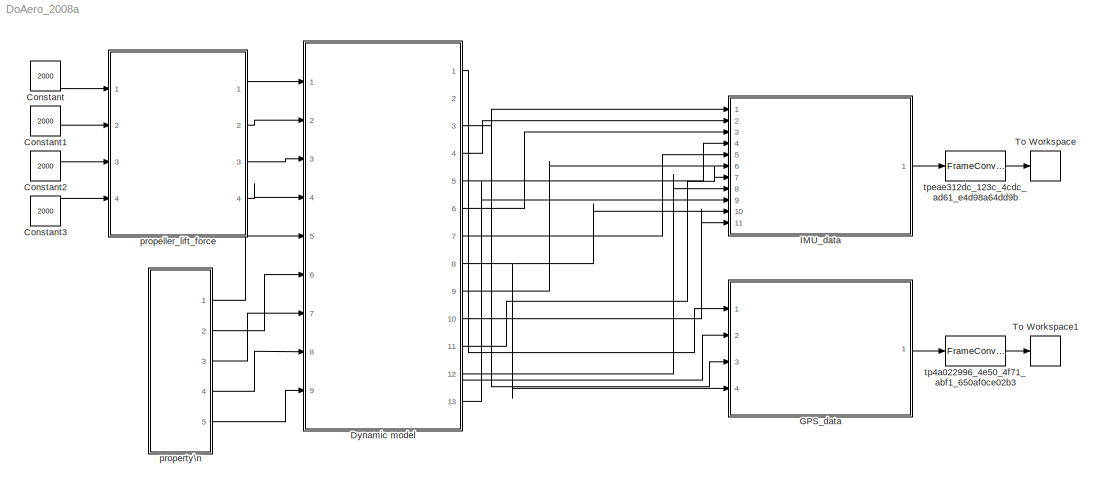
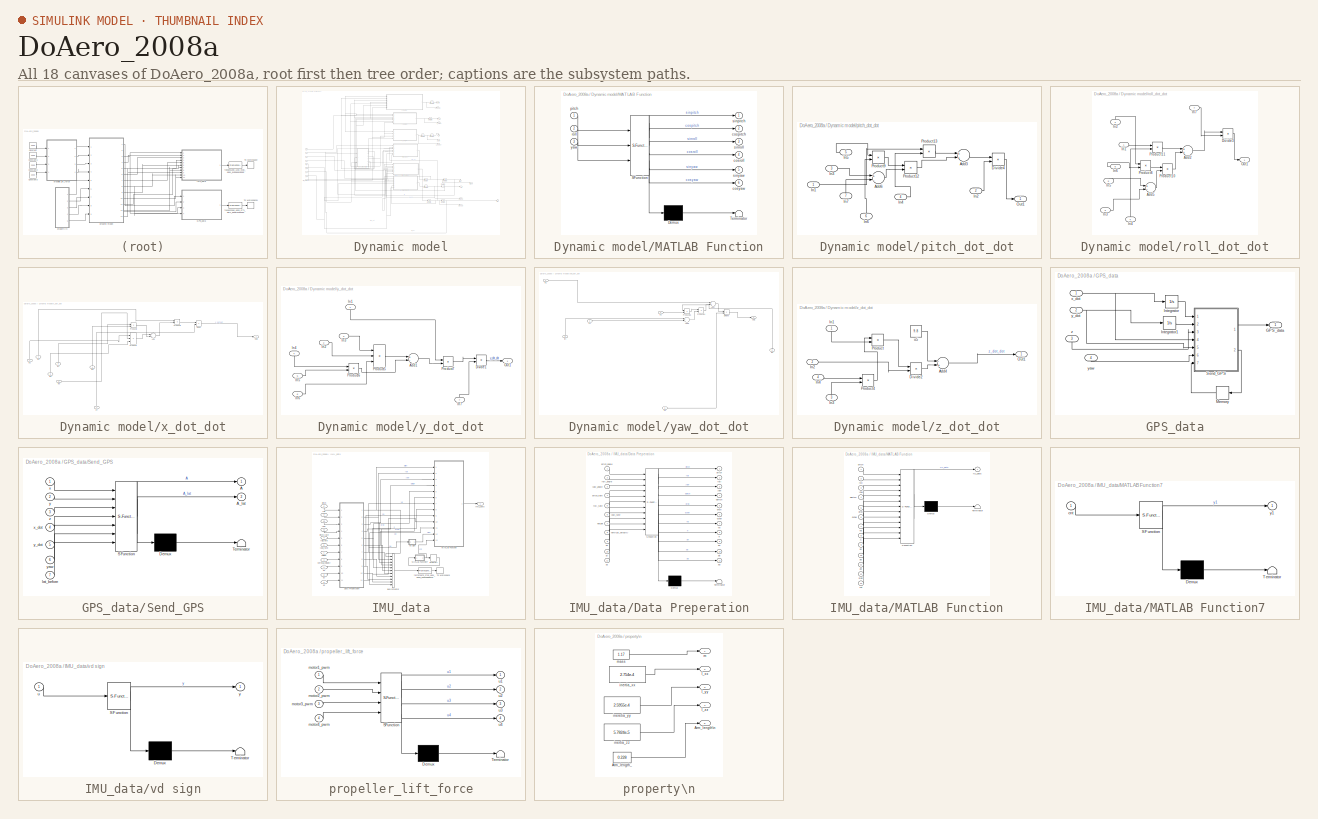
[diagram: thumbnail index - all 18 canvases of the model, root first then tree order]
MODEL DoAero_2008a
KIND model
BLOCK [Constant] Constant
  Value = 2000
BLOCK [Constant] Constant1
  Value = 2000
BLOCK [Constant] Constant2
  Value = 2000
BLOCK [Constant] Constant3
  Value = 2000
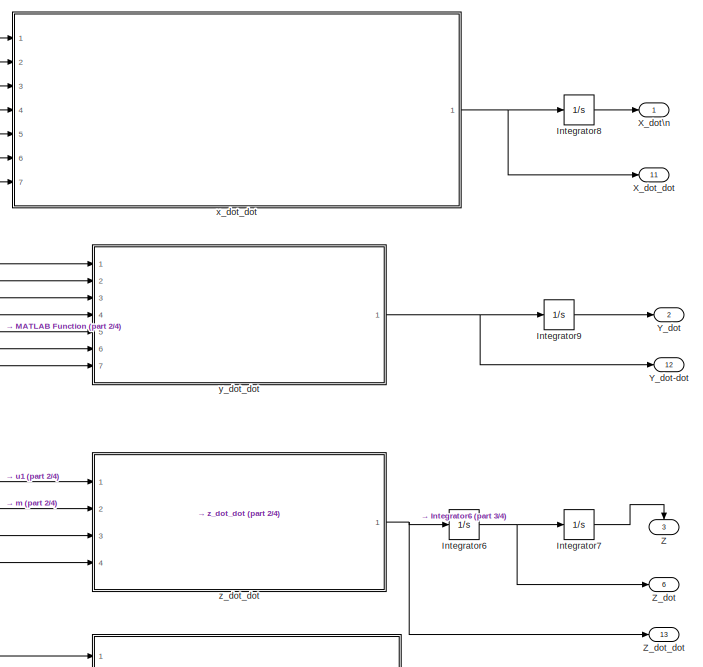
[diagram: Dynamic model - part 1/4, top center region]
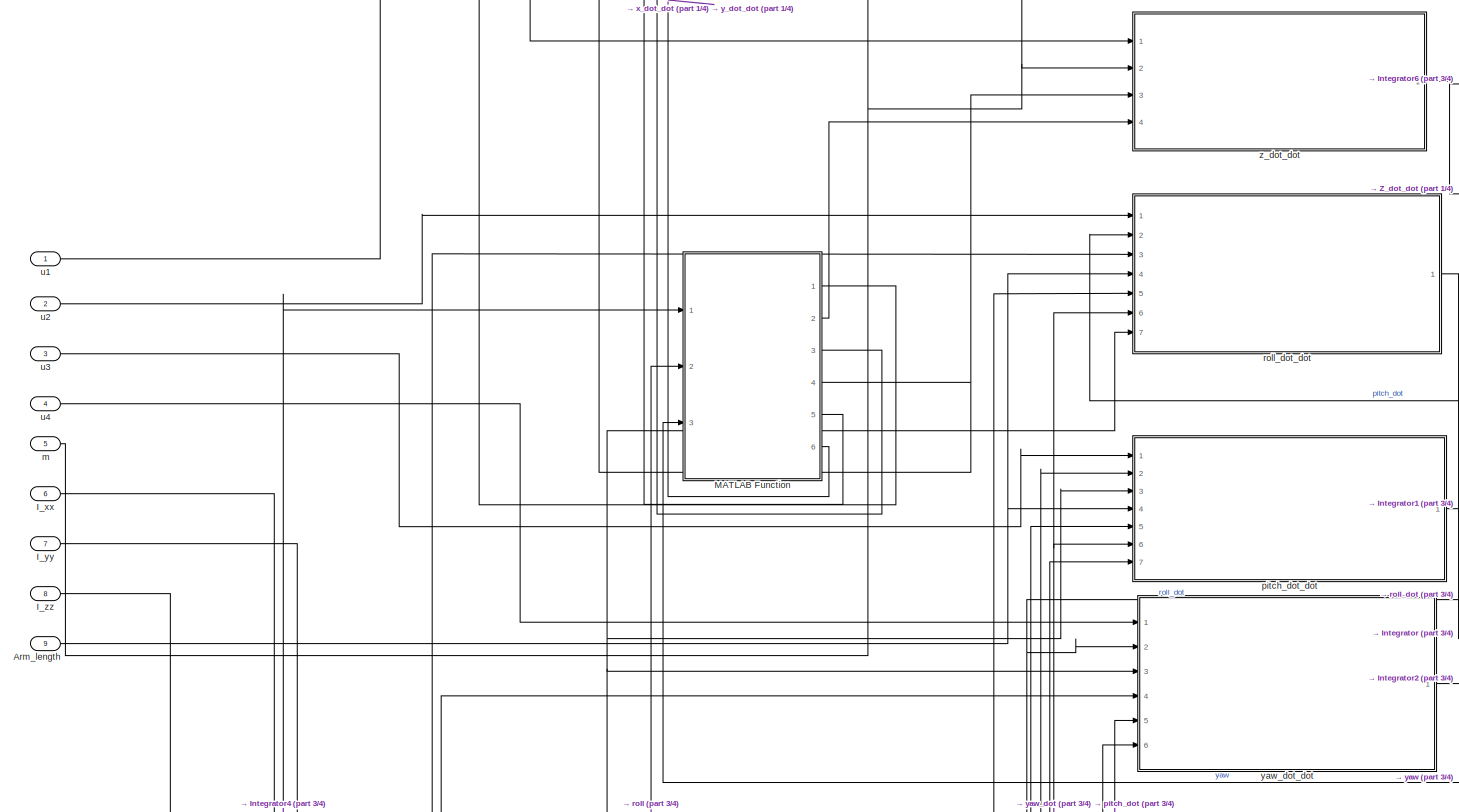
[diagram: Dynamic model - part 2/4, middle left region]
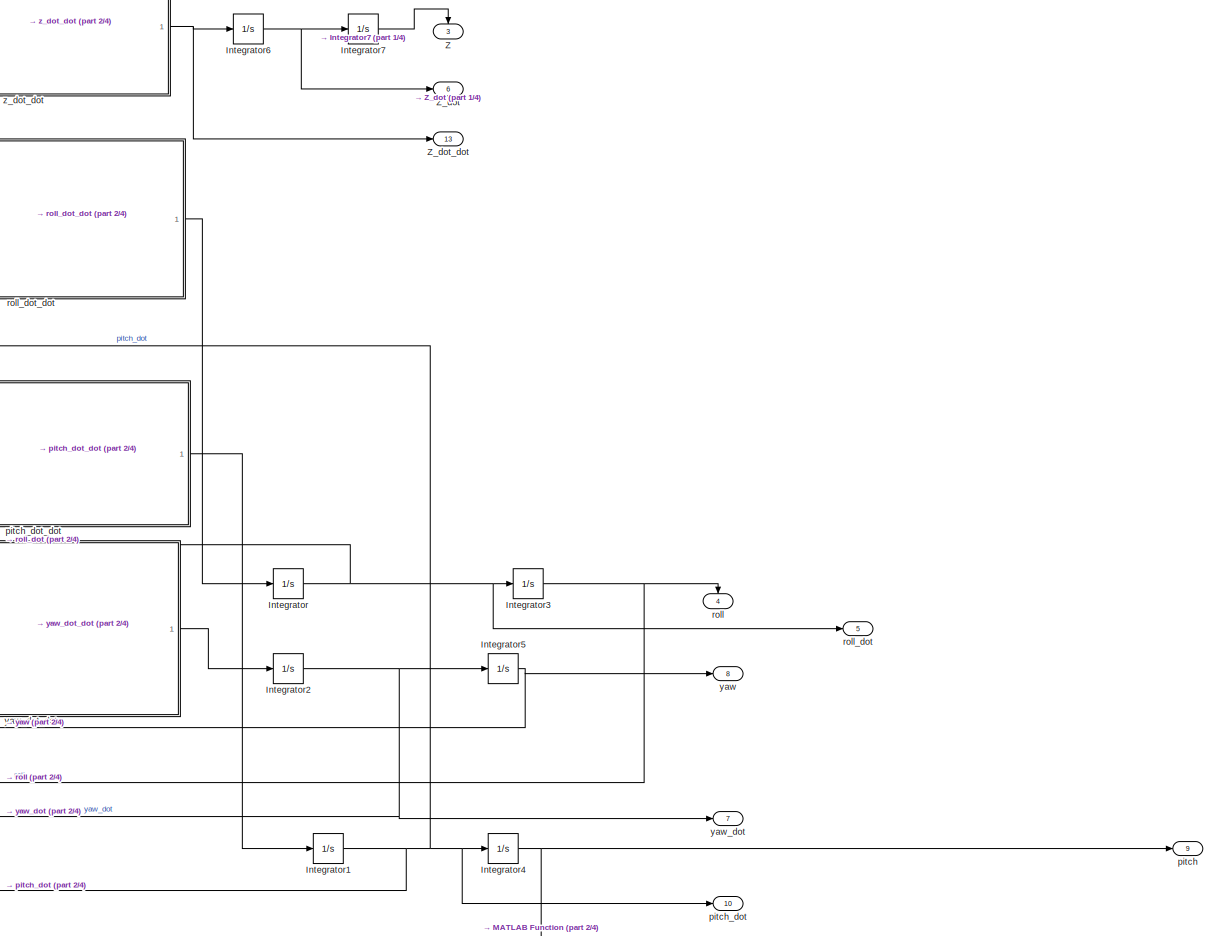
[diagram: Dynamic model - part 3/4, middle right region]
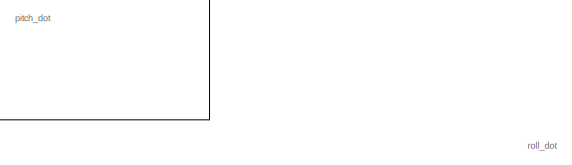
[diagram: Dynamic model - part 4/4, bottom center region]
BLOCK [SubSystem] Dynamic model
  FunctionWithSeparateData = off
  MaskHideContents = off
  MinAlgLoopOccurrences = off
  Opaque = off
  Ports = [9, 13]
  PropExecContextOutsideSubsystem = off
  RTWSystemCode = Auto
BLOCK [Inport] Dynamic model/Arm_length
  IconDisplay = Port number
  Port = 9
BLOCK [Inport] Dynamic model/I_xx
  IconDisplay = Port number
  Port = 6
BLOCK [Inport] Dynamic model/I_yy
  IconDisplay = Port number
  Port = 7
BLOCK [Inport] Dynamic model/I_zz
  IconDisplay = Port number
  Port = 8
BLOCK [Integrator] Dynamic model/Integrator
  Ports = [1, 1]
BLOCK [Integrator] Dynamic model/Integrator1
  Ports = [1, 1]
BLOCK [Integrator] Dynamic model/Integrator2
  Ports = [1, 1]
BLOCK [Integrator] Dynamic model/Integrator3
  Ports = [1, 1]
BLOCK [Integrator] Dynamic model/Integrator4
  Ports = [1, 1]
BLOCK [Integrator] Dynamic model/Integrator5
  Ports = [1, 1]
BLOCK [Integrator] Dynamic model/Integrator6
  Ports = [1, 1]
BLOCK [Integrator] Dynamic model/Integrator7
  Ports = [1, 1]
BLOCK [Integrator] Dynamic model/Integrator8
  Ports = [1, 1]
BLOCK [Integrator] Dynamic model/Integrator9
  Ports = [1, 1]
BLOCK [SubSystem] Dynamic model/MATLAB Function
  FunctionWithSeparateData = off
  MaskDescription = Embedded MATLAB block
  MaskDisplay = bgColor = Simulink.Root.ColorString2Rgb(get_param(gcbh, 'BackgroundColor')); image(imread('private/eml_membrane_16.png','png','BackgroundColor',bgColor(1:3)),'center'); disp([10 10 'fcn']);  <repeated x7 — deduplicated; at blocks: MATLAB Function, Send_GPS, Data Preperation, MATLAB Function7, vd sign, propeller_lift_force>
  MaskHideContents = off
  MaskIconFrame = on
  MaskIconOpaque = off
  MaskIconRotate = none
  MaskIconUnits = normalized
  MaskSelfModifiable = on
  MaskType = Stateflow
  MinAlgLoopOccurrences = off
  Opaque = off
  PermitHierarchicalResolution = ParametersOnly
  Ports = [3, 6]
  PropExecContextOutsideSubsystem = off
  RTWSystemCode = Auto
  TreatAsAtomicUnit = on
BLOCK [Demux] Dynamic model/MATLAB Function/ Demux 
  Outputs = 1
  Ports = [1, 1]
BLOCK [S-Function] Dynamic model/MATLAB Function/ SFunction 
  EnableBusSupport = on
  FunctionName = sf_sfun
  PortCounts = [3 7]
  Ports = [3, 7]
  Tag = Stateflow S-Function DoAero_2008a 8
BLOCK [Terminator] Dynamic model/MATLAB Function/ Terminator 
BLOCK [Outport] Dynamic model/MATLAB Function/cospitch
  IconDisplay = Port number
  Port = 2
BLOCK [Outport] Dynamic model/MATLAB Function/cosroll
  IconDisplay = Port number
  Port = 4
BLOCK [Outport] Dynamic model/MATLAB Function/cosyaw
  IconDisplay = Port number
  Port = 6
BLOCK [Inport] Dynamic model/MATLAB Function/pitch
  IconDisplay = Port number
BLOCK [Inport] Dynamic model/MATLAB Function/roll
  IconDisplay = Port number
  Port = 2
BLOCK [Outport] Dynamic model/MATLAB Function/sinpitch
  IconDisplay = Port number
BLOCK [Outport] Dynamic model/MATLAB Function/sinroll
  IconDisplay = Port number
  Port = 3
BLOCK [Outport] Dynamic model/MATLAB Function/sinyaw
  IconDisplay = Port number
  Port = 5
BLOCK [Inport] Dynamic model/MATLAB Function/yaw
  IconDisplay = Port number
  Port = 3
BLOCK [Outport] Dynamic model/X_dot\n
  IconDisplay = Port number
BLOCK [Outport] Dynamic model/X_dot_dot
  IconDisplay = Port number
  Port = 11
BLOCK [Outport] Dynamic model/Y_dot
  IconDisplay = Port number
  Port = 2
BLOCK [Outport] Dynamic model/Y_dot-dot
  IconDisplay = Port number
  Port = 12
BLOCK [Outport] Dynamic model/Z
  IconDisplay = Port number
  Port = 3
BLOCK [Outport] Dynamic model/Z_dot
  IconDisplay = Port number
  Port = 6
BLOCK [Outport] Dynamic model/Z_dot_dot
  IconDisplay = Port number
  Port = 13
BLOCK [Inport] Dynamic model/m
  IconDisplay = Port number
  Port = 5
BLOCK [Outport] Dynamic model/pitch
  IconDisplay = Port number
  Port = 9
BLOCK [Outport] Dynamic model/pitch_dot
  IconDisplay = Port number
  Port = 10
BLOCK [SubSystem] Dynamic model/pitch_dot_dot
  FunctionWithSeparateData = off
  MaskHideContents = off
  MinAlgLoopOccurrences = off
  Opaque = off
  Ports = [7, 1]
  PropExecContextOutsideSubsystem = off
  RTWSystemCode = Auto
BLOCK [Sum] Dynamic model/pitch_dot_dot/Add3
  InputSameDT = off
  OutDataTypeMode = Inherit via internal rule
  OutDataTypeStr = Inherit: Inherit via internal rule
  Ports = [2, 1]
  SaturateOnIntegerOverflow = off
BLOCK [Sum] Dynamic model/pitch_dot_dot/Add6
  InputSameDT = off
  Inputs = +-
  OutDataTypeMode = Inherit via internal rule
  OutDataTypeStr = Inherit: Inherit via internal rule
  Ports = [2, 1]
  SaturateOnIntegerOverflow = off
BLOCK [Product] Dynamic model/pitch_dot_dot/Divide4
  InputSameDT = off
  Inputs = */
  OutDataTypeMode = Inherit via internal rule
  OutDataTypeStr = Inherit: Inherit via internal rule
  Ports = [2, 1]
  RndMeth = Floor
  SaturateOnIntegerOverflow = off
BLOCK [Inport] Dynamic model/pitch_dot_dot/In1
  IconDisplay = Port number
BLOCK [Inport] Dynamic model/pitch_dot_dot/In2
  IconDisplay = Port number
  Port = 2
BLOCK [Inport] Dynamic model/pitch_dot_dot/In3
  IconDisplay = Port number
  Port = 3
BLOCK [Inport] Dynamic model/pitch_dot_dot/In4
  IconDisplay = Port number
  Port = 4
BLOCK [Inport] Dynamic model/pitch_dot_dot/In5
  IconDisplay = Port number
  Port = 5
BLOCK [Inport] Dynamic model/pitch_dot_dot/In6
  IconDisplay = Port number
  Port = 6
BLOCK [Inport] Dynamic model/pitch_dot_dot/In7
  IconDisplay = Port number
  Port = 7
BLOCK [Outport] Dynamic model/pitch_dot_dot/Out1
  IconDisplay = Port number
BLOCK [Product] Dynamic model/pitch_dot_dot/Product12
  InputSameDT = off
  OutDataTypeMode = Inherit via internal rule
  OutDataTypeStr = Inherit: Inherit via internal rule
  Ports = [2, 1]
  RndMeth = Floor
  SaturateOnIntegerOverflow = off
BLOCK [Product] Dynamic model/pitch_dot_dot/Product13
  InputSameDT = off
  OutDataTypeMode = Inherit via internal rule
  OutDataTypeStr = Inherit: Inherit via internal rule
  Ports = [2, 1]
  RndMeth = Floor
  SaturateOnIntegerOverflow = off
BLOCK [Product] Dynamic model/pitch_dot_dot/Product9
  InputSameDT = off
  OutDataTypeMode = Inherit via internal rule
  OutDataTypeStr = Inherit: Inherit via internal rule
  Ports = [2, 1]
  RndMeth = Floor
  SaturateOnIntegerOverflow = off
BLOCK [Outport] Dynamic model/roll
  IconDisplay = Port number
  Port = 4
BLOCK [Outport] Dynamic model/roll_dot
  IconDisplay = Port number
  Port = 5
BLOCK [SubSystem] Dynamic model/roll_dot_dot
  FunctionWithSeparateData = off
  MaskHideContents = off
  MinAlgLoopOccurrences = off
  Opaque = off
  Ports = [7, 1]
  PropExecContextOutsideSubsystem = off
  RTWSystemCode = Auto
BLOCK [Sum] Dynamic model/roll_dot_dot/Add2
  InputSameDT = off
  OutDataTypeMode = Inherit via internal rule
  OutDataTypeStr = Inherit: Inherit via internal rule
  Ports = [2, 1]
  SaturateOnIntegerOverflow = off
BLOCK [Sum] Dynamic model/roll_dot_dot/Add5
  InputSameDT = off
  Inputs = +-
  OutDataTypeMode = Inherit via internal rule
  OutDataTypeStr = Inherit: Inherit via internal rule
  Ports = [2, 1]
  SaturateOnIntegerOverflow = off
BLOCK [Product] Dynamic model/roll_dot_dot/Divide3
  InputSameDT = off
  Inputs = */
  OutDataTypeMode = Inherit via internal rule
  OutDataTypeStr = Inherit: Inherit via internal rule
  Ports = [2, 1]
  RndMeth = Floor
  SaturateOnIntegerOverflow = off
BLOCK [Inport] Dynamic model/roll_dot_dot/In1
  IconDisplay = Port number
BLOCK [Inport] Dynamic model/roll_dot_dot/In2
  IconDisplay = Port number
  Port = 2
BLOCK [Inport] Dynamic model/roll_dot_dot/In3
  IconDisplay = Port number
  Port = 3
BLOCK [Inport] Dynamic model/roll_dot_dot/In4
  IconDisplay = Port number
  Port = 4
BLOCK [Inport] Dynamic model/roll_dot_dot/In5
  IconDisplay = Port number
  Port = 5
BLOCK [Inport] Dynamic model/roll_dot_dot/In6
  IconDisplay = Port number
  Port = 6
BLOCK [Inport] Dynamic model/roll_dot_dot/In7
  IconDisplay = Port number
  Port = 7
BLOCK [Outport] Dynamic model/roll_dot_dot/Out1
  IconDisplay = Port number
BLOCK [Product] Dynamic model/roll_dot_dot/Product10
  InputSameDT = off
  OutDataTypeMode = Inherit via internal rule
  OutDataTypeStr = Inherit: Inherit via internal rule
  Ports = [2, 1]
  RndMeth = Floor
  SaturateOnIntegerOverflow = off
BLOCK [Product] Dynamic model/roll_dot_dot/Product11
  InputSameDT = off
  OutDataTypeMode = Inherit via internal rule
  OutDataTypeStr = Inherit: Inherit via internal rule
  Ports = [2, 1]
  RndMeth = Floor
  SaturateOnIntegerOverflow = off
BLOCK [Product] Dynamic model/roll_dot_dot/Product8
  InputSameDT = off
  OutDataTypeMode = Inherit via internal rule
  OutDataTypeStr = Inherit: Inherit via internal rule
  Ports = [2, 1]
  RndMeth = Floor
  SaturateOnIntegerOverflow = off
BLOCK [Inport] Dynamic model/u1
  IconDisplay = Port number
BLOCK [Inport] Dynamic model/u2
  IconDisplay = Port number
  Port = 2
BLOCK [Inport] Dynamic model/u3
  IconDisplay = Port number
  Port = 3
BLOCK [Inport] Dynamic model/u4
  IconDisplay = Port number
  Port = 4
BLOCK [SubSystem] Dynamic model/x_dot_dot
  FunctionWithSeparateData = off
  MaskHideContents = off
  MinAlgLoopOccurrences = off
  Opaque = off
  Ports = [7, 1]
  PropExecContextOutsideSubsystem = off
  RTWSystemCode = Auto
BLOCK [Sum] Dynamic model/x_dot_dot/Add
  InputSameDT = off
  OutDataTypeMode = Inherit via internal rule
  OutDataTypeStr = Inherit: Inherit via internal rule
  Ports = [2, 1]
  SaturateOnIntegerOverflow = off
BLOCK [Product] Dynamic model/x_dot_dot/Divide
  InputSameDT = off
  Inputs = */
  OutDataTypeMode = Inherit via internal rule
  OutDataTypeStr = Inherit: Inherit via internal rule
  Ports = [2, 1]
  RndMeth = Floor
  SaturateOnIntegerOverflow = off
BLOCK [Inport] Dynamic model/x_dot_dot/In1
  IconDisplay = Port number
BLOCK [Inport] Dynamic model/x_dot_dot/In2
  IconDisplay = Port number
  Port = 2
BLOCK [Inport] Dynamic model/x_dot_dot/In3
  IconDisplay = Port number
  Port = 3
BLOCK [Inport] Dynamic model/x_dot_dot/In4
  IconDisplay = Port number
  Port = 4
BLOCK [Inport] Dynamic model/x_dot_dot/In5
  IconDisplay = Port number
  Port = 5
BLOCK [Inport] Dynamic model/x_dot_dot/In6
  IconDisplay = Port number
  Port = 6
BLOCK [Inport] Dynamic model/x_dot_dot/In7
  IconDisplay = Port number
  Port = 7
BLOCK [Outport] Dynamic model/x_dot_dot/Out1
  IconDisplay = Port number
BLOCK [Product] Dynamic model/x_dot_dot/Product1
  InputSameDT = off
  Inputs = 3
  OutDataTypeMode = Inherit via internal rule
  OutDataTypeStr = Inherit: Inherit via internal rule
  Ports = [3, 1]
  RndMeth = Floor
  SaturateOnIntegerOverflow = off
BLOCK [Product] Dynamic model/x_dot_dot/Product2
  InputSameDT = off
  OutDataTypeMode = Inherit via internal rule
  OutDataTypeStr = Inherit: Inherit via internal rule
  Ports = [2, 1]
  RndMeth = Floor
  SaturateOnIntegerOverflow = off
BLOCK [Product] Dynamic model/x_dot_dot/Product3
  InputSameDT = off
  OutDataTypeMode = Inherit via internal rule
  OutDataTypeStr = Inherit: Inherit via internal rule
  Ports = [2, 1]
  RndMeth = Floor
  SaturateOnIntegerOverflow = off
BLOCK [SubSystem] Dynamic model/y_dot_dot
  FunctionWithSeparateData = off
  MaskHideContents = off
  MinAlgLoopOccurrences = off
  Opaque = off
  Ports = [7, 1]
  PropExecContextOutsideSubsystem = off
  RTWSystemCode = Auto
BLOCK [Sum] Dynamic model/y_dot_dot/Add1
  InputSameDT = off
  Inputs = +-
  OutDataTypeMode = Inherit via internal rule
  OutDataTypeStr = Inherit: Inherit via internal rule
  Ports = [2, 1]
  SaturateOnIntegerOverflow = off
BLOCK [Product] Dynamic model/y_dot_dot/Divide1
  InputSameDT = off
  Inputs = */
  OutDataTypeMode = Inherit via internal rule
  OutDataTypeStr = Inherit: Inherit via internal rule
  Ports = [2, 1]
  RndMeth = Floor
  SaturateOnIntegerOverflow = off
BLOCK [Inport] Dynamic model/y_dot_dot/In1
  IconDisplay = Port number
BLOCK [Inport] Dynamic model/y_dot_dot/In2
  IconDisplay = Port number
  Port = 2
BLOCK [Inport] Dynamic model/y_dot_dot/In3
  IconDisplay = Port number
  Port = 3
BLOCK [Inport] Dynamic model/y_dot_dot/In4
  IconDisplay = Port number
  Port = 4
BLOCK [Inport] Dynamic model/y_dot_dot/In5
  IconDisplay = Port number
  Port = 5
BLOCK [Inport] Dynamic model/y_dot_dot/In6
  IconDisplay = Port number
  Port = 6
BLOCK [Inport] Dynamic model/y_dot_dot/In7
  IconDisplay = Port number
  Port = 7
BLOCK [Outport] Dynamic model/y_dot_dot/Out1
  IconDisplay = Port number
BLOCK [Product] Dynamic model/y_dot_dot/Product5
  InputSameDT = off
  Inputs = 3
  OutDataTypeMode = Inherit via internal rule
  OutDataTypeStr = Inherit: Inherit via internal rule
  Ports = [3, 1]
  RndMeth = Floor
  SaturateOnIntegerOverflow = off
BLOCK [Product] Dynamic model/y_dot_dot/Product6
  InputSameDT = off
  OutDataTypeMode = Inherit via internal rule
  OutDataTypeStr = Inherit: Inherit via internal rule
  Ports = [2, 1]
  RndMeth = Floor
  SaturateOnIntegerOverflow = off
BLOCK [Product] Dynamic model/y_dot_dot/Product7
  InputSameDT = off
  OutDataTypeMode = Inherit via internal rule
  OutDataTypeStr = Inherit: Inherit via internal rule
  Ports = [2, 1]
  RndMeth = Floor
  SaturateOnIntegerOverflow = off
BLOCK [Outport] Dynamic model/yaw
  IconDisplay = Port number
  Port = 8
BLOCK [Outport] Dynamic model/yaw_dot
  IconDisplay = Port number
  Port = 7
BLOCK [SubSystem] Dynamic model/yaw_dot_dot
  FunctionWithSeparateData = off
  MaskHideContents = off
  MinAlgLoopOccurrences = off
  Opaque = off
  Ports = [6, 1]
  PropExecContextOutsideSubsystem = off
  RTWSystemCode = Auto
BLOCK [Sum] Dynamic model/yaw_dot_dot/Add7
  InputSameDT = off
  OutDataTypeMode = Inherit via internal rule
  OutDataTypeStr = Inherit: Inherit via internal rule
  Ports = [2, 1]
  SaturateOnIntegerOverflow = off
BLOCK [Sum] Dynamic model/yaw_dot_dot/Add8
  InputSameDT = off
  Inputs = +-
  OutDataTypeMode = Inherit via internal rule
  OutDataTypeStr = Inherit: Inherit via internal rule
  Ports = [2, 1]
  SaturateOnIntegerOverflow = off
BLOCK [Product] Dynamic model/yaw_dot_dot/Divide5
  InputSameDT = off
  Inputs = */
  OutDataTypeMode = Inherit via internal rule
  OutDataTypeStr = Inherit: Inherit via internal rule
  Ports = [2, 1]
  RndMeth = Floor
  SaturateOnIntegerOverflow = off
BLOCK [Inport] Dynamic model/yaw_dot_dot/In1
  IconDisplay = Port number
BLOCK [Inport] Dynamic model/yaw_dot_dot/In2
  IconDisplay = Port number
  Port = 2
BLOCK [Inport] Dynamic model/yaw_dot_dot/In3
  IconDisplay = Port number
  Port = 3
BLOCK [Inport] Dynamic model/yaw_dot_dot/In4
  IconDisplay = Port number
  Port = 4
BLOCK [Inport] Dynamic model/yaw_dot_dot/In5
  IconDisplay = Port number
  Port = 5
BLOCK [Inport] Dynamic model/yaw_dot_dot/In6
  IconDisplay = Port number
  Port = 6
BLOCK [Outport] Dynamic model/yaw_dot_dot/Out1
  IconDisplay = Port number
BLOCK [Product] Dynamic model/yaw_dot_dot/Product14
  InputSameDT = off
  OutDataTypeMode = Inherit via internal rule
  OutDataTypeStr = Inherit: Inherit via internal rule
  Ports = [2, 1]
  RndMeth = Floor
  SaturateOnIntegerOverflow = off
BLOCK [Product] Dynamic model/yaw_dot_dot/Product15
  InputSameDT = off
  OutDataTypeMode = Inherit via internal rule
  OutDataTypeStr = Inherit: Inherit via internal rule
  Ports = [2, 1]
  RndMeth = Floor
  SaturateOnIntegerOverflow = off
BLOCK [SubSystem] Dynamic model/z_dot_dot
  FunctionWithSeparateData = off
  MaskHideContents = off
  MinAlgLoopOccurrences = off
  Opaque = off
  Ports = [4, 1]
  PropExecContextOutsideSubsystem = off
  RTWSystemCode = Auto
BLOCK [Sum] Dynamic model/z_dot_dot/Add4
  InputSameDT = off
  Inputs = -+
  OutDataTypeMode = Inherit via internal rule
  OutDataTypeStr = Inherit: Inherit via internal rule
  Ports = [2, 1]
  SaturateOnIntegerOverflow = off
BLOCK [Product] Dynamic model/z_dot_dot/Divide2
  InputSameDT = off
  Inputs = */
  OutDataTypeMode = Inherit via internal rule
  OutDataTypeStr = Inherit: Inherit via internal rule
  Ports = [2, 1]
  RndMeth = Floor
  SaturateOnIntegerOverflow = off
BLOCK [Inport] Dynamic model/z_dot_dot/In1
  IconDisplay = Port number
BLOCK [Inport] Dynamic model/z_dot_dot/In2
  IconDisplay = Port number
  Port = 2
BLOCK [Inport] Dynamic model/z_dot_dot/In3
  IconDisplay = Port number
  Port = 3
BLOCK [Inport] Dynamic model/z_dot_dot/In4
  IconDisplay = Port number
  Port = 4
BLOCK [Outport] Dynamic model/z_dot_dot/Out1
  IconDisplay = Port number
BLOCK [Product] Dynamic model/z_dot_dot/Product
  InputSameDT = off
  OutDataTypeMode = Inherit via internal rule
  OutDataTypeStr = Inherit: Inherit via internal rule
  Ports = [2, 1]
  RndMeth = Floor
  SaturateOnIntegerOverflow = off
BLOCK [Product] Dynamic model/z_dot_dot/Product4
  InputSameDT = off
  OutDataTypeMode = Inherit via internal rule
  OutDataTypeStr = Inherit: Inherit via internal rule
  Ports = [2, 1]
  RndMeth = Floor
  SaturateOnIntegerOverflow = off
BLOCK [Constant] Dynamic model/z_dot_dot/u5
  Value = 9.8
BLOCK [SubSystem] GPS_data
  FunctionWithSeparateData = off
  MaskHideContents = off
  MinAlgLoopOccurrences = off
  Opaque = off
  Ports = [4, 1]
  PropExecContextOutsideSubsystem = off
  RTWSystemCode = Auto
BLOCK [Outport] GPS_data/GPS_data
  IconDisplay = Port number
BLOCK [Integrator] GPS_data/Integrator
  Ports = [1, 1]
BLOCK [Integrator] GPS_data/Integrator1
  Ports = [1, 1]
BLOCK [Memory] GPS_data/Memory
  X0 = 30
BLOCK [SubSystem] GPS_data/Send_GPS
  FunctionWithSeparateData = off
  MaskDescription = Embedded MATLAB block
  MaskHideContents = off
  MaskIconFrame = on
  MaskIconOpaque = off
  MaskIconRotate = none
  MaskIconUnits = normalized
  MaskSelfModifiable = on
  MaskType = Stateflow
  MinAlgLoopOccurrences = off
  Opaque = off
  PermitHierarchicalResolution = ParametersOnly
  Ports = [7, 2]
  PropExecContextOutsideSubsystem = off
  RTWSystemCode = Auto
  TreatAsAtomicUnit = on
BLOCK [Demux] GPS_data/Send_GPS/ Demux 
  Outputs = 1
  Ports = [1, 1]
BLOCK [S-Function] GPS_data/Send_GPS/ SFunction 
  EnableBusSupport = on
  FunctionName = sf_sfun
  PortCounts = [7 3]
  Ports = [7, 3]
  Tag = Stateflow S-Function DoAero_2008a 4
BLOCK [Terminator] GPS_data/Send_GPS/ Terminator 
BLOCK [Outport] GPS_data/Send_GPS/A
  IconDisplay = Port number
BLOCK [Outport] GPS_data/Send_GPS/A_lat
  IconDisplay = Port number
  Port = 2
BLOCK [Inport] GPS_data/Send_GPS/lat_before
  IconDisplay = Port number
  Port = 7
BLOCK [Inport] GPS_data/Send_GPS/x
  IconDisplay = Port number
BLOCK [Inport] GPS_data/Send_GPS/x_dot
  IconDisplay = Port number
  Port = 4
BLOCK [Inport] GPS_data/Send_GPS/y
  IconDisplay = Port number
  Port = 2
BLOCK [Inport] GPS_data/Send_GPS/y_dot
  IconDisplay = Port number
  Port = 5
BLOCK [Inport] GPS_data/Send_GPS/yaw
  IconDisplay = Port number
  Port = 6
BLOCK [Inport] GPS_data/Send_GPS/z
  IconDisplay = Port number
  Port = 3
BLOCK [Inport] GPS_data/x_dot
  IconDisplay = Port number
BLOCK [Inport] GPS_data/y_dot
  IconDisplay = Port number
  Port = 2
BLOCK [Inport] GPS_data/yaw
  IconDisplay = Port number
  Port = 4
BLOCK [Inport] GPS_data/z
  IconDisplay = Port number
  Port = 3
BLOCK [SubSystem] IMU_data
  FunctionWithSeparateData = off
  MaskHideContents = off
  MinAlgLoopOccurrences = off
  Opaque = off
  Ports = [11, 1]
  PropExecContextOutsideSubsystem = off
  RTWSystemCode = Auto
BLOCK [BusCreator] IMU_data/Bus\nCreator
  DisplayOption = bar
  Inputs = 11
  Ports = [11, 1]
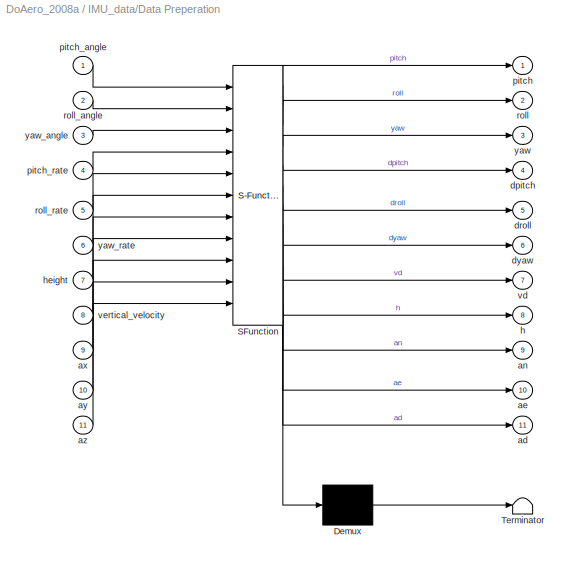
BLOCK [SubSystem] IMU_data/Data Preperation
  FunctionWithSeparateData = off
  MaskDescription = Embedded MATLAB block
  MaskHideContents = off
  MaskIconFrame = on
  MaskIconOpaque = off
  MaskIconRotate = none
  MaskIconUnits = normalized
  MaskSelfModifiable = on
  MaskType = Stateflow
  MinAlgLoopOccurrences = off
  Opaque = off
  PermitHierarchicalResolution = ParametersOnly
  Ports = [11, 11]
  PropExecContextOutsideSubsystem = off
  RTWSystemCode = Auto
  TreatAsAtomicUnit = on
BLOCK [Demux] IMU_data/Data Preperation/ Demux 
  Outputs = 1
  Ports = [1, 1]
BLOCK [S-Function] IMU_data/Data Preperation/ SFunction 
  EnableBusSupport = on
  FunctionName = sf_sfun
  PortCounts = [11 12]
  Ports = [11, 12]
  Tag = Stateflow S-Function DoAero_2008a 2
BLOCK [Terminator] IMU_data/Data Preperation/ Terminator 
BLOCK [Outport] IMU_data/Data Preperation/ad
  IconDisplay = Port number
  Port = 11
BLOCK [Outport] IMU_data/Data Preperation/ae
  IconDisplay = Port number
  Port = 10
BLOCK [Outport] IMU_data/Data Preperation/an
  IconDisplay = Port number
  Port = 9
BLOCK [Inport] IMU_data/Data Preperation/ax
  IconDisplay = Port number
  Port = 9
BLOCK [Inport] IMU_data/Data Preperation/ay
  IconDisplay = Port number
  Port = 10
BLOCK [Inport] IMU_data/Data Preperation/az
  IconDisplay = Port number
  Port = 11
BLOCK [Outport] IMU_data/Data Preperation/dpitch
  IconDisplay = Port number
  Port = 4
BLOCK [Outport] IMU_data/Data Preperation/droll
  IconDisplay = Port number
  Port = 5
BLOCK [Outport] IMU_data/Data Preperation/dyaw
  IconDisplay = Port number
  Port = 6
BLOCK [Outport] IMU_data/Data Preperation/h
  IconDisplay = Port number
  Port = 8
BLOCK [Inport] IMU_data/Data Preperation/height
  IconDisplay = Port number
  Port = 7
BLOCK [Outport] IMU_data/Data Preperation/pitch
  IconDisplay = Port number
BLOCK [Inport] IMU_data/Data Preperation/pitch_angle
  IconDisplay = Port number
BLOCK [Inport] IMU_data/Data Preperation/pitch_rate
  IconDisplay = Port number
  Port = 4
BLOCK [Outport] IMU_data/Data Preperation/roll
  IconDisplay = Port number
  Port = 2
BLOCK [Inport] IMU_data/Data Preperation/roll_angle
  IconDisplay = Port number
  Port = 2
BLOCK [Inport] IMU_data/Data Preperation/roll_rate
  IconDisplay = Port number
  Port = 5
BLOCK [Outport] IMU_data/Data Preperation/vd
  IconDisplay = Port number
  Port = 7
BLOCK [Inport] IMU_data/Data Preperation/vertical_velocity
  IconDisplay = Port number
  Port = 8
BLOCK [Outport] IMU_data/Data Preperation/yaw
  IconDisplay = Port number
  Port = 3
BLOCK [Inport] IMU_data/Data Preperation/yaw_angle
  IconDisplay = Port number
  Port = 3
BLOCK [Inport] IMU_data/Data Preperation/yaw_rate
  IconDisplay = Port number
  Port = 6
BLOCK [Outport] IMU_data/IMU_data
  IconDisplay = Port number
BLOCK [SubSystem] IMU_data/MATLAB Function
  FunctionWithSeparateData = off
  MaskDescription = Embedded MATLAB block
  MaskHideContents = off
  MaskIconFrame = on
  MaskIconOpaque = off
  MaskIconRotate = none
  MaskIconUnits = normalized
  MaskSelfModifiable = on
  MaskType = Stateflow
  MinAlgLoopOccurrences = off
  Opaque = off
  PermitHierarchicalResolution = ParametersOnly
  Ports = [13, 1]
  PropExecContextOutsideSubsystem = off
  RTWSystemCode = Auto
  TreatAsAtomicUnit = on
BLOCK [Demux] IMU_data/MATLAB Function/ Demux 
  Outputs = 1
  Ports = [1, 1]
BLOCK [S-Function] IMU_data/MATLAB Function/ SFunction 
  EnableBusSupport = on
  FunctionName = sf_sfun
  PortCounts = [13 2]
  Ports = [13, 2]
  Tag = Stateflow S-Function DoAero_2008a 3
BLOCK [Terminator] IMU_data/MATLAB Function/ Terminator 
BLOCK [Outport] IMU_data/MATLAB Function/N1_data
  IconDisplay = Port number
BLOCK [Inport] IMU_data/MATLAB Function/ad
  IconDisplay = Port number
  Port = 11
BLOCK [Inport] IMU_data/MATLAB Function/ae
  IconDisplay = Port number
  Port = 10
BLOCK [Inport] IMU_data/MATLAB Function/an
  IconDisplay = Port number
  Port = 9
BLOCK [Inport] IMU_data/MATLAB Function/cnt
  IconDisplay = Port number
  Port = 13
BLOCK [Inport] IMU_data/MATLAB Function/dpitch
  IconDisplay = Port number
  Port = 4
BLOCK [Inport] IMU_data/MATLAB Function/droll
  IconDisplay = Port number
  Port = 5
BLOCK [Inport] IMU_data/MATLAB Function/dyaw
  IconDisplay = Port number
  Port = 6
BLOCK [Inport] IMU_data/MATLAB Function/h
  IconDisplay = Port number
  Port = 8
BLOCK [Inport] IMU_data/MATLAB Function/pitch
  IconDisplay = Port number
BLOCK [Inport] IMU_data/MATLAB Function/roll
  IconDisplay = Port number
  Port = 2
BLOCK [Inport] IMU_data/MATLAB Function/sign
  IconDisplay = Port number
  Port = 12
BLOCK [Inport] IMU_data/MATLAB Function/vd
  IconDisplay = Port number
  Port = 7
BLOCK [Inport] IMU_data/MATLAB Function/yaw
  IconDisplay = Port number
  Port = 3
BLOCK [SubSystem] IMU_data/MATLAB Function7
  FunctionWithSeparateData = off
  MaskDescription = Embedded MATLAB block
  MaskHideContents = off
  MaskIconFrame = on
  MaskIconOpaque = off
  MaskIconRotate = none
  MaskIconUnits = normalized
  MaskSelfModifiable = on
  MaskType = Stateflow
  MinAlgLoopOccurrences = off
  Opaque = off
  PermitHierarchicalResolution = ParametersOnly
  Ports = [1, 1]
  PropExecContextOutsideSubsystem = off
  RTWSystemCode = Auto
  TreatAsAtomicUnit = on
BLOCK [Demux] IMU_data/MATLAB Function7/ Demux 
  Outputs = 1
  Ports = [1, 1]
BLOCK [S-Function] IMU_data/MATLAB Function7/ SFunction 
  EnableBusSupport = on
  FunctionName = sf_sfun
  PortCounts = [1 2]
  Ports = [1, 2]
  Tag = Stateflow S-Function DoAero_2008a 14
BLOCK [Terminator] IMU_data/MATLAB Function7/ Terminator 
BLOCK [Inport] IMU_data/MATLAB Function7/cnt
  IconDisplay = Port number
BLOCK [Outport] IMU_data/MATLAB Function7/y1
  IconDisplay = Port number
BLOCK [Memory] IMU_data/Memory
BLOCK [ToWorkspace] IMU_data/To Workspace
  FixptAsFi = on
  MaxDataPoints = inf
  Ports = [1]
  SampleTime = -1
  VariableName = packed_data
BLOCK [Inport] IMU_data/ax
  IconDisplay = Port number
  Port = 7
BLOCK [Inport] IMU_data/ay
  IconDisplay = Port number
  Port = 8
BLOCK [Inport] IMU_data/az
  IconDisplay = Port number
  Port = 9
BLOCK [Inport] IMU_data/height
  IconDisplay = Port number
BLOCK [Inport] IMU_data/pitch
  IconDisplay = Port number
  Port = 6
BLOCK [Inport] IMU_data/pitch_rate
  IconDisplay = Port number
  Port = 11
BLOCK [Inport] IMU_data/roll
  IconDisplay = Port number
  Port = 2
BLOCK [Inport] IMU_data/roll_rate
  IconDisplay = Port number
  Port = 4
BLOCK [FrameConversion] IMU_data/tpc7e70675_2f2d_4e91_9930_d3563ddb5c5f
  Ports = [1, 1]
BLOCK [SubSystem] IMU_data/vd sign
  FunctionWithSeparateData = off
  MaskDescription = Embedded MATLAB block
  MaskHideContents = off
  MaskIconFrame = on
  MaskIconOpaque = off
  MaskIconRotate = none
  MaskIconUnits = normalized
  MaskSelfModifiable = on
  MaskType = Stateflow
  MinAlgLoopOccurrences = off
  Opaque = off
  PermitHierarchicalResolution = ParametersOnly
  Ports = [1, 1]
  PropExecContextOutsideSubsystem = off
  RTWSystemCode = Auto
  TreatAsAtomicUnit = on
BLOCK [Demux] IMU_data/vd sign/ Demux 
  Outputs = 1
  Ports = [1, 1]
BLOCK [S-Function] IMU_data/vd sign/ SFunction 
  EnableBusSupport = on
  FunctionName = sf_sfun
  PortCounts = [1 2]
  Ports = [1, 2]
  Tag = Stateflow S-Function DoAero_2008a 1
BLOCK [Terminator] IMU_data/vd sign/ Terminator 
BLOCK [Inport] IMU_data/vd sign/u
  IconDisplay = Port number
BLOCK [Outport] IMU_data/vd sign/y
  IconDisplay = Port number
BLOCK [Inport] IMU_data/vertical_velocity
  IconDisplay = Port number
  Port = 3
BLOCK [Inport] IMU_data/yaw
  IconDisplay = Port number
  Port = 10
BLOCK [Inport] IMU_data/yaw_rate
  IconDisplay = Port number
  Port = 5
BLOCK [ToWorkspace] To Workspace
  FixptAsFi = on
  MaxDataPoints = inf
  Ports = [1]
  SampleTime = -1
  VariableName = IMU_data
BLOCK [ToWorkspace] To Workspace1
  FixptAsFi = on
  MaxDataPoints = inf
  Ports = [1]
  SampleTime = -1
  VariableName = GPS_data
BLOCK [SubSystem] propeller_lift_force
  FunctionWithSeparateData = off
  MaskDescription = Embedded MATLAB block
  MaskHideContents = off
  MaskIconFrame = on
  MaskIconOpaque = off
  MaskIconRotate = none
  MaskIconUnits = normalized
  MaskSelfModifiable = on
  MaskType = Stateflow
  MinAlgLoopOccurrences = off
  Opaque = off
  PermitHierarchicalResolution = ParametersOnly
  Ports = [4, 4]
  PropExecContextOutsideSubsystem = off
  RTWSystemCode = Auto
  TreatAsAtomicUnit = on
BLOCK [Demux] propeller_lift_force/ Demux 
  Outputs = 1
  Ports = [1, 1]
BLOCK [S-Function] propeller_lift_force/ SFunction 
  EnableBusSupport = on
  FunctionName = sf_sfun
  PortCounts = [4 5]
  Ports = [4, 5]
  Tag = Stateflow S-Function DoAero_2008a 5
BLOCK [Terminator] propeller_lift_force/ Terminator 
BLOCK [Inport] propeller_lift_force/motor1_pwm
  IconDisplay = Port number
BLOCK [Inport] propeller_lift_force/motor2_pwm
  IconDisplay = Port number
  Port = 2
BLOCK [Inport] propeller_lift_force/motor3_pwm
  IconDisplay = Port number
  Port = 3
BLOCK [Inport] propeller_lift_force/motor4_pwm
  IconDisplay = Port number
  Port = 4
BLOCK [Outport] propeller_lift_force/u1
  IconDisplay = Port number
BLOCK [Outport] propeller_lift_force/u2
  IconDisplay = Port number
  Port = 2
BLOCK [Outport] propeller_lift_force/u3
  IconDisplay = Port number
  Port = 3
BLOCK [Outport] propeller_lift_force/u4
  IconDisplay = Port number
  Port = 4
BLOCK [SubSystem] property\n
  FunctionWithSeparateData = off
  MaskHideContents = off
  MinAlgLoopOccurrences = off
  Opaque = off
  Ports = [0, 5]
  PropExecContextOutsideSubsystem = off
  RTWSystemCode = Auto
BLOCK [Outport] property\n/Arm_length\n
  IconDisplay = Port number
  Port = 5
BLOCK [Constant] property\n/Arm_length_
  Value = 0.228
BLOCK [Outport] property\n/I_xx
  IconDisplay = Port number
  Port = 2
BLOCK [Outport] property\n/I_yy
  IconDisplay = Port number
  Port = 3
BLOCK [Outport] property\n/I_zz
  IconDisplay = Port number
  Port = 4
BLOCK [Constant] property\n/ineretia_yy
  Value = 2.5955e-4
BLOCK [Constant] property\n/inertia_xx
  Value = 2.754e-4
BLOCK [Constant] property\n/inertia_zz
  Value = 5.7824e-5
BLOCK [Outport] property\n/m
  IconDisplay = Port number
BLOCK [Constant] property\n/mass
  Value = 1.17
BLOCK [FrameConversion] tp4a022996_4e50_4f71_abf1_650af0ce02b3
  Ports = [1, 1]
BLOCK [FrameConversion] tpeae312dc_123c_4cdc_ad61_e4d98a64dd9b
  Ports = [1, 1]
ANNOTATION Dynamic model: pitch_dot
ANNOTATION Dynamic model: roll_dot
LINE Constant1:1 -> propeller_lift_force:2
LINE Constant2:1 -> propeller_lift_force:3
LINE Constant3:1 -> propeller_lift_force:4
LINE Constant:1 -> propeller_lift_force:1
NET Dynamic model/Arm_length:1 -> Dynamic model/pitch_dot_dot:4, Dynamic model/roll_dot_dot:4
NET Dynamic model/I_xx:1 -> Dynamic model/pitch_dot_dot:2, Dynamic model/roll_dot_dot:3, Dynamic model/yaw_dot_dot:4
NET Dynamic model/I_yy:1 -> Dynamic model/pitch_dot_dot:3, Dynamic model/roll_dot_dot:7, Dynamic model/yaw_dot_dot:3
NET Dynamic model/I_zz:1 -> Dynamic model/pitch_dot_dot:7, Dynamic model/roll_dot_dot:5, Dynamic model/yaw_dot_dot:6
NET Dynamic model/Integrator1:1 -> Dynamic model/Integrator4:1, Dynamic model/pitch_dot:1, Dynamic model/roll_dot_dot:2, Dynamic model/yaw_dot_dot:5
NET Dynamic model/Integrator2:1 -> Dynamic model/Integrator5:1, Dynamic model/pitch_dot_dot:6, Dynamic model/roll_dot_dot:6, Dynamic model/yaw_dot:1
NET Dynamic model/Integrator3:1 -> Dynamic model/MATLAB Function:2, Dynamic model/roll:1
NET Dynamic model/Integrator4:1 -> Dynamic model/MATLAB Function:1, Dynamic model/pitch:1
NET Dynamic model/Integrator5:1 -> Dynamic model/MATLAB Function:3, Dynamic model/yaw:1
NET Dynamic model/Integrator6:1 -> Dynamic model/Integrator7:1, Dynamic model/Z_dot:1
LINE Dynamic model/Integrator7:1 -> Dynamic model/Z:1
LINE Dynamic model/Integrator8:1 -> Dynamic model/X_dot\n:1
LINE Dynamic model/Integrator9:1 -> Dynamic model/Y_dot:1
NET Dynamic model/Integrator:1 -> Dynamic model/Integrator3:1, Dynamic model/pitch_dot_dot:5, Dynamic model/roll_dot:1, Dynamic model/yaw_dot_dot:2
LINE Dynamic model/MATLAB Function/ Demux :1 -> Dynamic model/MATLAB Function/ Terminator :1
LINE Dynamic model/MATLAB Function/ SFunction :1 -> Dynamic model/MATLAB Function/ Demux :1
LINE Dynamic model/MATLAB Function/ SFunction :2 -> Dynamic model/MATLAB Function/sinpitch:1
LINE Dynamic model/MATLAB Function/ SFunction :3 -> Dynamic model/MATLAB Function/cospitch:1
LINE Dynamic model/MATLAB Function/ SFunction :4 -> Dynamic model/MATLAB Function/sinroll:1
LINE Dynamic model/MATLAB Function/ SFunction :5 -> Dynamic model/MATLAB Function/cosroll:1
LINE Dynamic model/MATLAB Function/ SFunction :6 -> Dynamic model/MATLAB Function/sinyaw:1
LINE Dynamic model/MATLAB Function/ SFunction :7 -> Dynamic model/MATLAB Function/cosyaw:1
LINE Dynamic model/MATLAB Function/pitch:1 -> Dynamic model/MATLAB Function/ SFunction :1
LINE Dynamic model/MATLAB Function/roll:1 -> Dynamic model/MATLAB Function/ SFunction :2
LINE Dynamic model/MATLAB Function/yaw:1 -> Dynamic model/MATLAB Function/ SFunction :3
NET Dynamic model/MATLAB Function:1 -> Dynamic model/x_dot_dot:2, Dynamic model/y_dot_dot:2
LINE Dynamic model/MATLAB Function:2 -> Dynamic model/z_dot_dot:4
NET Dynamic model/MATLAB Function:3 -> Dynamic model/x_dot_dot:4, Dynamic model/y_dot_dot:4
NET Dynamic model/MATLAB Function:4 -> Dynamic model/x_dot_dot:5, Dynamic model/y_dot_dot:6, Dynamic model/z_dot_dot:3
NET Dynamic model/MATLAB Function:5 -> Dynamic model/x_dot_dot:3, Dynamic model/y_dot_dot:3
NET Dynamic model/MATLAB Function:6 -> Dynamic model/x_dot_dot:6, Dynamic model/y_dot_dot:5
NET Dynamic model/m:1 -> Dynamic model/x_dot_dot:7, Dynamic model/y_dot_dot:7, Dynamic model/z_dot_dot:2
LINE Dynamic model/pitch_dot_dot/Add3:1 -> Dynamic model/pitch_dot_dot/Divide4:1
LINE Dynamic model/pitch_dot_dot/Add6:1 -> Dynamic model/pitch_dot_dot/Product12:2
LINE Dynamic model/pitch_dot_dot/Divide4:1 -> Dynamic model/pitch_dot_dot/Out1:1
LINE Dynamic model/pitch_dot_dot/In1:1 -> Dynamic model/pitch_dot_dot/Product13:1
LINE Dynamic model/pitch_dot_dot/In2:1 -> Dynamic model/pitch_dot_dot/Divide4:2
LINE Dynamic model/pitch_dot_dot/In3:1 -> Dynamic model/pitch_dot_dot/Add6:1
LINE Dynamic model/pitch_dot_dot/In4:1 -> Dynamic model/pitch_dot_dot/Product13:2
LINE Dynamic model/pitch_dot_dot/In5:1 -> Dynamic model/pitch_dot_dot/Product9:1
LINE Dynamic model/pitch_dot_dot/In6:1 -> Dynamic model/pitch_dot_dot/Product9:2
LINE Dynamic model/pitch_dot_dot/In7:1 -> Dynamic model/pitch_dot_dot/Add6:2
LINE Dynamic model/pitch_dot_dot/Product12:1 -> Dynamic model/pitch_dot_dot/Add3:2
LINE Dynamic model/pitch_dot_dot/Product13:1 -> Dynamic model/pitch_dot_dot/Add3:1
LINE Dynamic model/pitch_dot_dot/Product9:1 -> Dynamic model/pitch_dot_dot/Product12:1
LINE Dynamic model/pitch_dot_dot:1 -> Dynamic model/Integrator1:1
LINE Dynamic model/roll_dot_dot/Add2:1 -> Dynamic model/roll_dot_dot/Divide3:1
LINE Dynamic model/roll_dot_dot/Add5:1 -> Dynamic model/roll_dot_dot/Product10:2
LINE Dynamic model/roll_dot_dot/Divide3:1 -> Dynamic model/roll_dot_dot/Out1:1
LINE Dynamic model/roll_dot_dot/In1:1 -> Dynamic model/roll_dot_dot/Product11:1
LINE Dynamic model/roll_dot_dot/In2:1 -> Dynamic model/roll_dot_dot/Product8:1
LINE Dynamic model/roll_dot_dot/In3:1 -> Dynamic model/roll_dot_dot/Add5:2
LINE Dynamic model/roll_dot_dot/In4:1 -> Dynamic model/roll_dot_dot/Product11:2
LINE Dynamic model/roll_dot_dot/In5:1 -> Dynamic model/roll_dot_dot/Add5:1
LINE Dynamic model/roll_dot_dot/In6:1 -> Dynamic model/roll_dot_dot/Product8:2
LINE Dynamic model/roll_dot_dot/In7:1 -> Dynamic model/roll_dot_dot/Divide3:2
LINE Dynamic model/roll_dot_dot/Product10:1 -> Dynamic model/roll_dot_dot/Add2:2
LINE Dynamic model/roll_dot_dot/Product11:1 -> Dynamic model/roll_dot_dot/Add2:1
LINE Dynamic model/roll_dot_dot/Product8:1 -> Dynamic model/roll_dot_dot/Product10:1
LINE Dynamic model/roll_dot_dot:1 -> Dynamic model/Integrator:1
NET Dynamic model/u1:1 -> Dynamic model/x_dot_dot:1, Dynamic model/y_dot_dot:1, Dynamic model/z_dot_dot:1
LINE Dynamic model/u2:1 -> Dynamic model/roll_dot_dot:1
LINE Dynamic model/u3:1 -> Dynamic model/pitch_dot_dot:1
LINE Dynamic model/u4:1 -> Dynamic model/yaw_dot_dot:1
LINE Dynamic model/x_dot_dot/Add:1 -> Dynamic model/x_dot_dot/Product3:2
LINE Dynamic model/x_dot_dot/Divide:1 -> Dynamic model/x_dot_dot/Out1:1
LINE Dynamic model/x_dot_dot/In1:1 -> Dynamic model/x_dot_dot/Product3:1
LINE Dynamic model/x_dot_dot/In2:1 -> Dynamic model/x_dot_dot/Product1:1
LINE Dynamic model/x_dot_dot/In3:1 -> Dynamic model/x_dot_dot/Product2:1
LINE Dynamic model/x_dot_dot/In4:1 -> Dynamic model/x_dot_dot/Product2:2
LINE Dynamic model/x_dot_dot/In5:1 -> Dynamic model/x_dot_dot/Product1:3
LINE Dynamic model/x_dot_dot/In6:1 -> Dynamic model/x_dot_dot/Product1:2
LINE Dynamic model/x_dot_dot/In7:1 -> Dynamic model/x_dot_dot/Divide:2
LINE Dynamic model/x_dot_dot/Product1:1 -> Dynamic model/x_dot_dot/Add:1
LINE Dynamic model/x_dot_dot/Product2:1 -> Dynamic model/x_dot_dot/Add:2
LINE Dynamic model/x_dot_dot/Product3:1 -> Dynamic model/x_dot_dot/Divide:1
NET Dynamic model/x_dot_dot:1 -> Dynamic model/Integrator8:1, Dynamic model/X_dot_dot:1
LINE Dynamic model/y_dot_dot/Add1:1 -> Dynamic model/y_dot_dot/Product7:2
LINE Dynamic model/y_dot_dot/Divide1:1 -> Dynamic model/y_dot_dot/Out1:1
LINE Dynamic model/y_dot_dot/In1:1 -> Dynamic model/y_dot_dot/Product7:1
LINE Dynamic model/y_dot_dot/In2:1 -> Dynamic model/y_dot_dot/Product5:2
LINE Dynamic model/y_dot_dot/In3:1 -> Dynamic model/y_dot_dot/Product5:1
LINE Dynamic model/y_dot_dot/In4:1 -> Dynamic model/y_dot_dot/Product6:1
LINE Dynamic model/y_dot_dot/In5:1 -> Dynamic model/y_dot_dot/Product6:2
LINE Dynamic model/y_dot_dot/In6:1 -> Dynamic model/y_dot_dot/Product5:3
LINE Dynamic model/y_dot_dot/In7:1 -> Dynamic model/y_dot_dot/Divide1:2
LINE Dynamic model/y_dot_dot/Product5:1 -> Dynamic model/y_dot_dot/Add1:1
LINE Dynamic model/y_dot_dot/Product6:1 -> Dynamic model/y_dot_dot/Add1:2
LINE Dynamic model/y_dot_dot/Product7:1 -> Dynamic model/y_dot_dot/Divide1:1
NET Dynamic model/y_dot_dot:1 -> Dynamic model/Integrator9:1, Dynamic model/Y_dot-dot:1
LINE Dynamic model/yaw_dot_dot/Add7:1 -> Dynamic model/yaw_dot_dot/Divide5:1
LINE Dynamic model/yaw_dot_dot/Add8:1 -> Dynamic model/yaw_dot_dot/Product14:2
LINE Dynamic model/yaw_dot_dot/Divide5:1 -> Dynamic model/yaw_dot_dot/Out1:1
LINE Dynamic model/yaw_dot_dot/In1:1 -> Dynamic model/yaw_dot_dot/Add7:1
LINE Dynamic model/yaw_dot_dot/In2:1 -> Dynamic model/yaw_dot_dot/Product15:2
LINE Dynamic model/yaw_dot_dot/In3:1 -> Dynamic model/yaw_dot_dot/Add8:2
LINE Dynamic model/yaw_dot_dot/In4:1 -> Dynamic model/yaw_dot_dot/Add8:1
LINE Dynamic model/yaw_dot_dot/In5:1 -> Dynamic model/yaw_dot_dot/Product15:1
LINE Dynamic model/yaw_dot_dot/In6:1 -> Dynamic model/yaw_dot_dot/Divide5:2
LINE Dynamic model/yaw_dot_dot/Product14:1 -> Dynamic model/yaw_dot_dot/Add7:2
LINE Dynamic model/yaw_dot_dot/Product15:1 -> Dynamic model/yaw_dot_dot/Product14:1
LINE Dynamic model/yaw_dot_dot:1 -> Dynamic model/Integrator2:1
LINE Dynamic model/z_dot_dot/Add4:1 -> Dynamic model/z_dot_dot/Out1:1
LINE Dynamic model/z_dot_dot/Divide2:1 -> Dynamic model/z_dot_dot/Add4:2
LINE Dynamic model/z_dot_dot/In1:1 -> Dynamic model/z_dot_dot/Product:2
LINE Dynamic model/z_dot_dot/In2:1 -> Dynamic model/z_dot_dot/Divide2:2
LINE Dynamic model/z_dot_dot/In3:1 -> Dynamic model/z_dot_dot/Product4:2
LINE Dynamic model/z_dot_dot/In4:1 -> Dynamic model/z_dot_dot/Product4:1
LINE Dynamic model/z_dot_dot/Product4:1 -> Dynamic model/z_dot_dot/Product:1
LINE Dynamic model/z_dot_dot/Product:1 -> Dynamic model/z_dot_dot/Divide2:1
LINE Dynamic model/z_dot_dot/u5:1 -> Dynamic model/z_dot_dot/Add4:1
NET Dynamic model/z_dot_dot:1 -> Dynamic model/Integrator6:1, Dynamic model/Z_dot_dot:1
LINE Dynamic model:1 -> GPS_data:1
LINE Dynamic model:10 -> IMU_data:11
LINE Dynamic model:11 -> IMU_data:7
LINE Dynamic model:12 -> IMU_data:8
LINE Dynamic model:13 -> IMU_data:9
LINE Dynamic model:2 -> GPS_data:2
NET Dynamic model:3 -> GPS_data:3, IMU_data:1
LINE Dynamic model:4 -> IMU_data:2
LINE Dynamic model:5 -> IMU_data:4
LINE Dynamic model:6 -> IMU_data:3
LINE Dynamic model:7 -> IMU_data:5
NET Dynamic model:8 -> GPS_data:4, IMU_data:10
LINE Dynamic model:9 -> IMU_data:6
LINE GPS_data/Integrator1:1 -> GPS_data/Send_GPS:2
LINE GPS_data/Integrator:1 -> GPS_data/Send_GPS:1
LINE GPS_data/Memory:1 -> GPS_data/Send_GPS:7
LINE GPS_data/Send_GPS/ Demux :1 -> GPS_data/Send_GPS/ Terminator :1
LINE GPS_data/Send_GPS/ SFunction :1 -> GPS_data/Send_GPS/ Demux :1
LINE GPS_data/Send_GPS/ SFunction :2 -> GPS_data/Send_GPS/A:1
LINE GPS_data/Send_GPS/ SFunction :3 -> GPS_data/Send_GPS/A_lat:1
LINE GPS_data/Send_GPS/lat_before:1 -> GPS_data/Send_GPS/ SFunction :7
LINE GPS_data/Send_GPS/x:1 -> GPS_data/Send_GPS/ SFunction :1
LINE GPS_data/Send_GPS/x_dot:1 -> GPS_data/Send_GPS/ SFunction :4
LINE GPS_data/Send_GPS/y:1 -> GPS_data/Send_GPS/ SFunction :2
LINE GPS_data/Send_GPS/y_dot:1 -> GPS_data/Send_GPS/ SFunction :5
LINE GPS_data/Send_GPS/yaw:1 -> GPS_data/Send_GPS/ SFunction :6
LINE GPS_data/Send_GPS/z:1 -> GPS_data/Send_GPS/ SFunction :3
LINE GPS_data/Send_GPS:1 -> GPS_data/GPS_data:1
LINE GPS_data/Send_GPS:2 -> GPS_data/Memory:1
NET GPS_data/x_dot:1 -> GPS_data/Integrator:1, GPS_data/Send_GPS:4
NET GPS_data/y_dot:1 -> GPS_data/Integrator1:1, GPS_data/Send_GPS:5
LINE GPS_data/yaw:1 -> GPS_data/Send_GPS:6
LINE GPS_data/z:1 -> GPS_data/Send_GPS:3
LINE GPS_data:1 -> tp4a022996_4e50_4f71_abf1_650af0ce02b3:1
LINE IMU_data/Bus\nCreator:1 -> IMU_data/tpc7e70675_2f2d_4e91_9930_d3563ddb5c5f:1
LINE IMU_data/Data Preperation/ Demux :1 -> IMU_data/Data Preperation/ Terminator :1
LINE IMU_data/Data Preperation/ SFunction :1 -> IMU_data/Data Preperation/ Demux :1
LINE IMU_data/Data Preperation/ SFunction :10 -> IMU_data/Data Preperation/an:1
LINE IMU_data/Data Preperation/ SFunction :11 -> IMU_data/Data Preperation/ae:1
LINE IMU_data/Data Preperation/ SFunction :12 -> IMU_data/Data Preperation/ad:1
LINE IMU_data/Data Preperation/ SFunction :2 -> IMU_data/Data Preperation/pitch:1
LINE IMU_data/Data Preperation/ SFunction :3 -> IMU_data/Data Preperation/roll:1
LINE IMU_data/Data Preperation/ SFunction :4 -> IMU_data/Data Preperation/yaw:1
LINE IMU_data/Data Preperation/ SFunction :5 -> IMU_data/Data Preperation/dpitch:1
LINE IMU_data/Data Preperation/ SFunction :6 -> IMU_data/Data Preperation/droll:1
LINE IMU_data/Data Preperation/ SFunction :7 -> IMU_data/Data Preperation/dyaw:1
LINE IMU_data/Data Preperation/ SFunction :8 -> IMU_data/Data Preperation/vd:1
LINE IMU_data/Data Preperation/ SFunction :9 -> IMU_data/Data Preperation/h:1
LINE IMU_data/Data Preperation/ax:1 -> IMU_data/Data Preperation/ SFunction :9
LINE IMU_data/Data Preperation/ay:1 -> IMU_data/Data Preperation/ SFunction :10
LINE IMU_data/Data Preperation/az:1 -> IMU_data/Data Preperation/ SFunction :11
LINE IMU_data/Data Preperation/height:1 -> IMU_data/Data Preperation/ SFunction :7
LINE IMU_data/Data Preperation/pitch_angle:1 -> IMU_data/Data Preperation/ SFunction :1
LINE IMU_data/Data Preperation/pitch_rate:1 -> IMU_data/Data Preperation/ SFunction :4
LINE IMU_data/Data Preperation/roll_angle:1 -> IMU_data/Data Preperation/ SFunction :2
LINE IMU_data/Data Preperation/roll_rate:1 -> IMU_data/Data Preperation/ SFunction :5
LINE IMU_data/Data Preperation/vertical_velocity:1 -> IMU_data/Data Preperation/ SFunction :8
LINE IMU_data/Data Preperation/yaw_angle:1 -> IMU_data/Data Preperation/ SFunction :3
LINE IMU_data/Data Preperation/yaw_rate:1 -> IMU_data/Data Preperation/ SFunction :6
NET IMU_data/Data Preperation:1 -> IMU_data/Bus\nCreator:1, IMU_data/MATLAB Function:1
NET IMU_data/Data Preperation:10 -> IMU_data/Bus\nCreator:10, IMU_data/MATLAB Function:10
NET IMU_data/Data Preperation:11 -> IMU_data/Bus\nCreator:11, IMU_data/MATLAB Function:11
NET IMU_data/Data Preperation:2 -> IMU_data/Bus\nCreator:2, IMU_data/MATLAB Function:2
NET IMU_data/Data Preperation:3 -> IMU_data/Bus\nCreator:3, IMU_data/MATLAB Function:3
NET IMU_data/Data Preperation:4 -> IMU_data/Bus\nCreator:4, IMU_data/MATLAB Function:4
NET IMU_data/Data Preperation:5 -> IMU_data/Bus\nCreator:5, IMU_data/MATLAB Function:5
NET IMU_data/Data Preperation:6 -> IMU_data/Bus\nCreator:6, IMU_data/MATLAB Function:6
NET IMU_data/Data Preperation:7 -> IMU_data/Bus\nCreator:7, IMU_data/MATLAB Function:7, IMU_data/vd sign:1
NET IMU_data/Data Preperation:8 -> IMU_data/Bus\nCreator:8, IMU_data/MATLAB Function:8
NET IMU_data/Data Preperation:9 -> IMU_data/Bus\nCreator:9, IMU_data/MATLAB Function:9
LINE IMU_data/MATLAB Function/ Demux :1 -> IMU_data/MATLAB Function/ Terminator :1
LINE IMU_data/MATLAB Function/ SFunction :1 -> IMU_data/MATLAB Function/ Demux :1
LINE IMU_data/MATLAB Function/ SFunction :2 -> IMU_data/MATLAB Function/N1_data:1
LINE IMU_data/MATLAB Function/ad:1 -> IMU_data/MATLAB Function/ SFunction :11
LINE IMU_data/MATLAB Function/ae:1 -> IMU_data/MATLAB Function/ SFunction :10
LINE IMU_data/MATLAB Function/an:1 -> IMU_data/MATLAB Function/ SFunction :9
LINE IMU_data/MATLAB Function/cnt:1 -> IMU_data/MATLAB Function/ SFunction :13
LINE IMU_data/MATLAB Function/dpitch:1 -> IMU_data/MATLAB Function/ SFunction :4
LINE IMU_data/MATLAB Function/droll:1 -> IMU_data/MATLAB Function/ SFunction :5
LINE IMU_data/MATLAB Function/dyaw:1 -> IMU_data/MATLAB Function/ SFunction :6
LINE IMU_data/MATLAB Function/h:1 -> IMU_data/MATLAB Function/ SFunction :8
LINE IMU_data/MATLAB Function/pitch:1 -> IMU_data/MATLAB Function/ SFunction :1
LINE IMU_data/MATLAB Function/roll:1 -> IMU_data/MATLAB Function/ SFunction :2
LINE IMU_data/MATLAB Function/sign:1 -> IMU_data/MATLAB Function/ SFunction :12
LINE IMU_data/MATLAB Function/vd:1 -> IMU_data/MATLAB Function/ SFunction :7
LINE IMU_data/MATLAB Function/yaw:1 -> IMU_data/MATLAB Function/ SFunction :3
LINE IMU_data/MATLAB Function7/ Demux :1 -> IMU_data/MATLAB Function7/ Terminator :1
LINE IMU_data/MATLAB Function7/ SFunction :1 -> IMU_data/MATLAB Function7/ Demux :1
LINE IMU_data/MATLAB Function7/ SFunction :2 -> IMU_data/MATLAB Function7/y1:1
LINE IMU_data/MATLAB Function7/cnt:1 -> IMU_data/MATLAB Function7/ SFunction :1
NET IMU_data/MATLAB Function7:1 -> IMU_data/MATLAB Function:13, IMU_data/Memory:1
LINE IMU_data/MATLAB Function:1 -> IMU_data/IMU_data:1
LINE IMU_data/Memory:1 -> IMU_data/MATLAB Function7:1
LINE IMU_data/ax:1 -> IMU_data/Data Preperation:9
LINE IMU_data/ay:1 -> IMU_data/Data Preperation:10
LINE IMU_data/az:1 -> IMU_data/Data Preperation:11
LINE IMU_data/height:1 -> IMU_data/Data Preperation:7
LINE IMU_data/pitch:1 -> IMU_data/Data Preperation:1
LINE IMU_data/pitch_rate:1 -> IMU_data/Data Preperation:4
LINE IMU_data/roll:1 -> IMU_data/Data Preperation:2
LINE IMU_data/roll_rate:1 -> IMU_data/Data Preperation:5
LINE IMU_data/tpc7e70675_2f2d_4e91_9930_d3563ddb5c5f:1 -> IMU_data/To Workspace:1
LINE IMU_data/vd sign/ Demux :1 -> IMU_data/vd sign/ Terminator :1
LINE IMU_data/vd sign/ SFunction :1 -> IMU_data/vd sign/ Demux :1
LINE IMU_data/vd sign/ SFunction :2 -> IMU_data/vd sign/y:1
LINE IMU_data/vd sign/u:1 -> IMU_data/vd sign/ SFunction :1
LINE IMU_data/vd sign:1 -> IMU_data/MATLAB Function:12
LINE IMU_data/vertical_velocity:1 -> IMU_data/Data Preperation:8
LINE IMU_data/yaw:1 -> IMU_data/Data Preperation:3
LINE IMU_data/yaw_rate:1 -> IMU_data/Data Preperation:6
LINE IMU_data:1 -> tpeae312dc_123c_4cdc_ad61_e4d98a64dd9b:1
LINE propeller_lift_force/ Demux :1 -> propeller_lift_force/ Terminator :1
LINE propeller_lift_force/ SFunction :1 -> propeller_lift_force/ Demux :1
LINE propeller_lift_force/ SFunction :2 -> propeller_lift_force/u1:1
LINE propeller_lift_force/ SFunction :3 -> propeller_lift_force/u2:1
LINE propeller_lift_force/ SFunction :4 -> propeller_lift_force/u3:1
LINE propeller_lift_force/ SFunction :5 -> propeller_lift_force/u4:1
LINE propeller_lift_force/motor1_pwm:1 -> propeller_lift_force/ SFunction :1
LINE propeller_lift_force/motor2_pwm:1 -> propeller_lift_force/ SFunction :2
LINE propeller_lift_force/motor3_pwm:1 -> propeller_lift_force/ SFunction :3
LINE propeller_lift_force/motor4_pwm:1 -> propeller_lift_force/ SFunction :4
LINE propeller_lift_force:1 -> Dynamic model:1
LINE propeller_lift_force:2 -> Dynamic model:2
LINE propeller_lift_force:3 -> Dynamic model:3
LINE propeller_lift_force:4 -> Dynamic model:4
LINE property\n/Arm_length_:1 -> property\n/Arm_length\n:1
LINE property\n/ineretia_yy:1 -> property\n/I_yy:1
LINE property\n/inertia_xx:1 -> property\n/I_xx:1
LINE property\n/inertia_zz:1 -> property\n/I_zz:1
LINE property\n/mass:1 -> property\n/m:1
LINE property\n:1 -> Dynamic model:5
LINE property\n:2 -> Dynamic model:6
LINE property\n:3 -> Dynamic model:7
LINE property\n:4 -> Dynamic model:8
LINE property\n:5 -> Dynamic model:9
LINE tp4a022996_4e50_4f71_abf1_650af0ce02b3:1 -> To Workspace1:1
LINE tpeae312dc_123c_4cdc_ad61_e4d98a64dd9b:1 -> To Workspace:1
note: NET lines group one-source signal fan-out (src -> all destinations, sorted); 1:1 wires keep LINE
CHART IMU_data/vd sign states=1 transitions=1
  STATE_LABEL 'eML_blk_kernel()'
CHART IMU_data/Data Preperation states=1 transitions=1
  STATE_LABEL 'eML_blk_kernel()'
CHART IMU_data/MATLAB Function states=1 transitions=1
  STATE_LABEL 'eML_blk_kernel()'
CHART GPS_data/Send_GPS states=1 transitions=1
  STATE_LABEL 'eML_blk_kernel()'
CHART propeller_lift_force states=1 transitions=1
  STATE_LABEL 'eML_blk_kernel()'
CHART Dynamic model/MATLAB Function states=1 transitions=1
  STATE_LABEL 'eML_blk_kernel()'
CHART IMU_data/MATLAB Function7 states=1 transitions=1
  STATE_LABEL 'eML_blk_kernel()'
